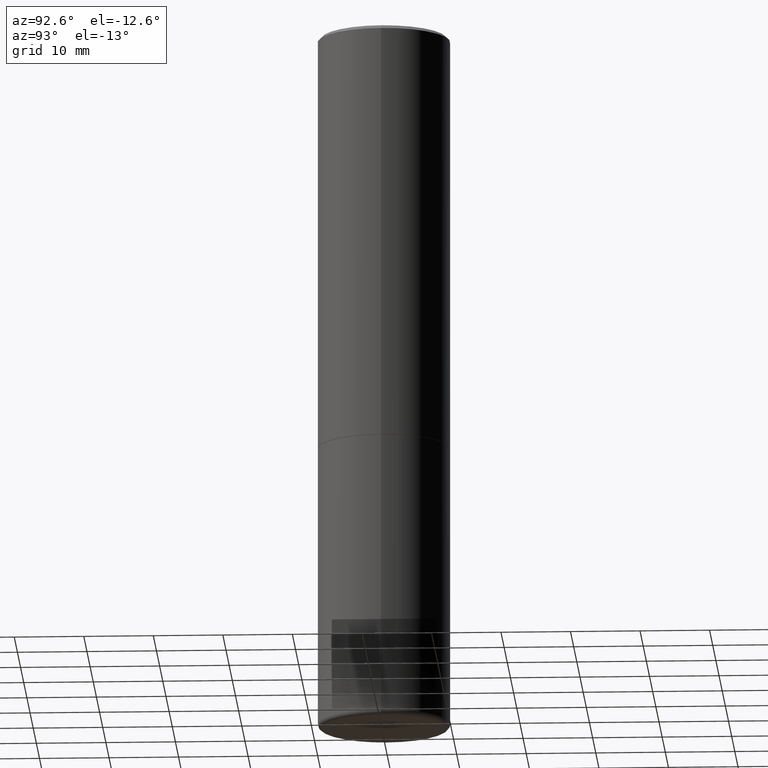
[diagram: clean part render]
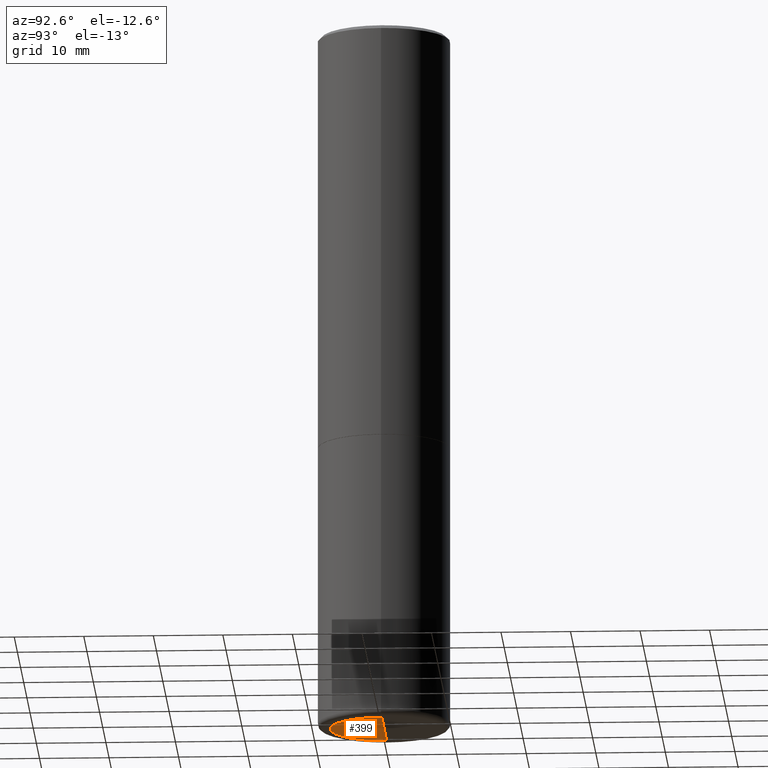
[diagram: same view with one face highlighted and labeled with its STEP entity id]
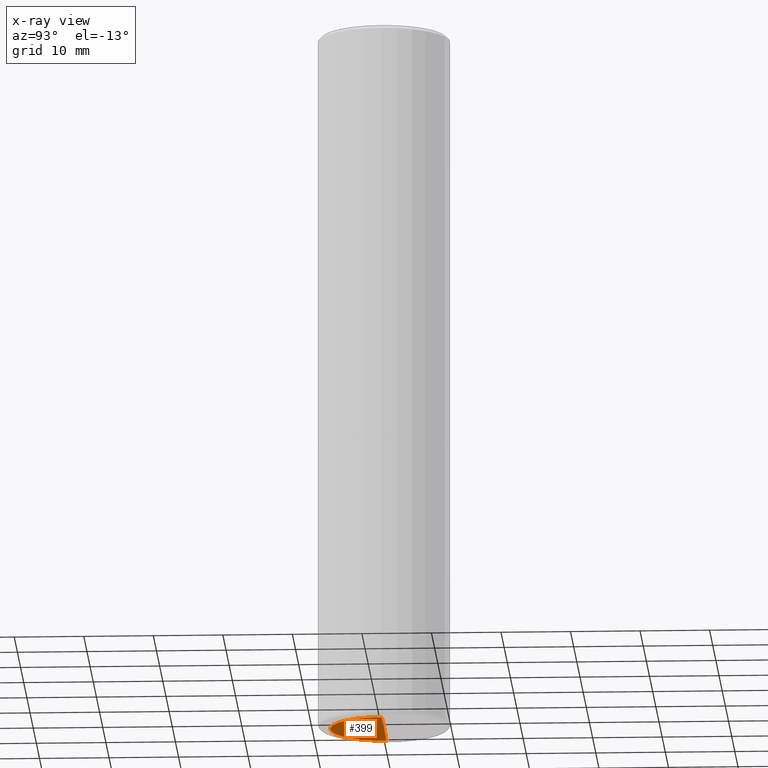
[diagram: x-ray of the same camera — body ghosted, the highlighted face saturated]
A machine part, auxiliary view. The second image highlights one B-rep face of the part: STEP entity #399.
The next image is the same camera in x-ray: the body ghosted, the highlighted face saturated — about 0% of this face is hidden behind the body in this view.
In plain terms, the highlighted conical surface has half-angle 88 deg.
Its self-contained STEP definition (entity closure, byte-faithful):
#2 = CARTESIAN_POINT ( 'NONE',  ( 9.781021626775434250E-29, -1.396470664370530441E-14, -3.999650947105539256 ) ) ;
#6 = CIRCLE ( 'NONE', #65, 0.3047407039350492619 ) ;
#11 = DIRECTION ( 'NONE',  ( -1.000000000000000000, 6.982962677686265133E-15, 0.000000000000000000 ) ) ;
#26 = ORIENTED_EDGE ( 'NONE', *, *, #374, .F. ) ;
#36 = VECTOR ( 'NONE', #210, 39.37007874015748854 ) ;
#59 = ORIENTED_EDGE ( 'NONE', *, *, #335, .T. ) ;
#65 = AXIS2_PLACEMENT_3D ( 'NONE', #187, #465, #157 ) ;
#114 = FACE_OUTER_BOUND ( 'NONE', #139, .T. ) ;
#115 = CARTESIAN_POINT ( 'NONE',  ( 9.754251709572808210E-29, -1.392861906220722304E-14, -3.989009167228670272 ) ) ;
#123 = DIRECTION ( 'NONE',  ( 2.445468806185136597E-29, -3.491481338843145583E-15, -1.000000000000000000 ) ) ;
#139 = EDGE_LOOP ( 'NONE', ( #347, #59, #26 ) ) ;
#148 = VERTEX_POINT ( 'NONE', #221 ) ;
#157 = DIRECTION ( 'NONE',  ( 1.000000000000000000, -6.982962677686265133E-15, 0.000000000000000000 ) ) ;
#183 = VERTEX_POINT ( 'NONE', #376 ) ;
#187 = CARTESIAN_POINT ( 'NONE',  ( 9.781021626775434250E-29, -1.396470664370530441E-14, -3.999650947105539256 ) ) ;
#206 = LINE ( 'NONE', #242, #332 ) ;
#210 = DIRECTION ( 'NONE',  ( 0.9993908270190957621, -6.978169709227545432E-15, -0.03489949670250196839 ) ) ;
#221 = CARTESIAN_POINT ( 'NONE',  ( 0.3047407039350492619, -1.605537963289119756E-14, -3.999650947105539256 ) ) ;
#242 = CARTESIAN_POINT ( 'NONE',  ( -0.3047407039350492619, -1.183671368175501508E-14, -3.999650947105539256 ) ) ;
#278 = DIRECTION ( 'NONE',  ( -0.9993908270190957621, 6.856857904024552526E-15, -0.03489949670250196839 ) ) ;
#296 = AXIS2_PLACEMENT_3D ( 'NONE', #2, #123, #11 ) ;
#320 = LINE ( 'NONE', #361, #36 ) ;
#321 = EDGE_CURVE ( 'NONE', #482, #183, #206, .T. ) ;
#332 = VECTOR ( 'NONE', #278, 39.37007874015748854 ) ;
#335 = EDGE_CURVE ( 'NONE', #482, #148, #320, .T. ) ;
#347 = ORIENTED_EDGE ( 'NONE', *, *, #321, .F. ) ;
#361 = CARTESIAN_POINT ( 'NONE',  ( 0.3047407039350492619, -1.605537963289119756E-14, -3.999650947105539256 ) ) ;
#374 = EDGE_CURVE ( 'NONE', #183, #148, #6, .T. ) ;
#376 = CARTESIAN_POINT ( 'NONE',  ( -0.3047407039350492619, -1.183671368175501508E-14, -3.999650947105539256 ) ) ;
#399 = ADVANCED_FACE ( 'NONE', ( #114 ), #459, .F. ) ;
#459 = CONICAL_SURFACE ( 'NONE', #296, 0.3047407039350492619, 1.535889741755009030 ) ;
#465 = DIRECTION ( 'NONE',  ( -2.445468806185136597E-29, 3.491481338843145583E-15, 1.000000000000000000 ) ) ;
#482 = VERTEX_POINT ( 'NONE', #115 ) ;